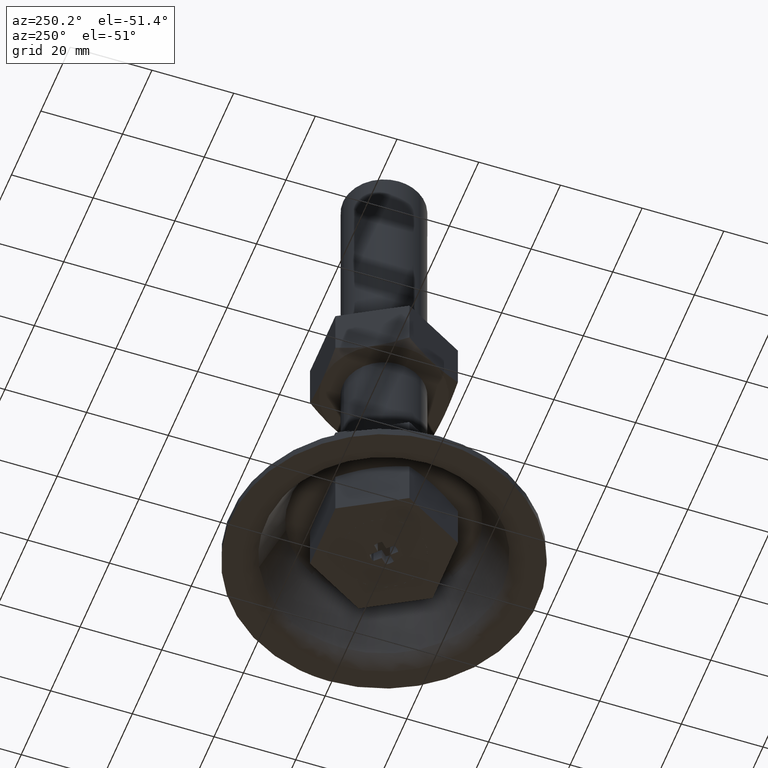
[diagram: clean part render]
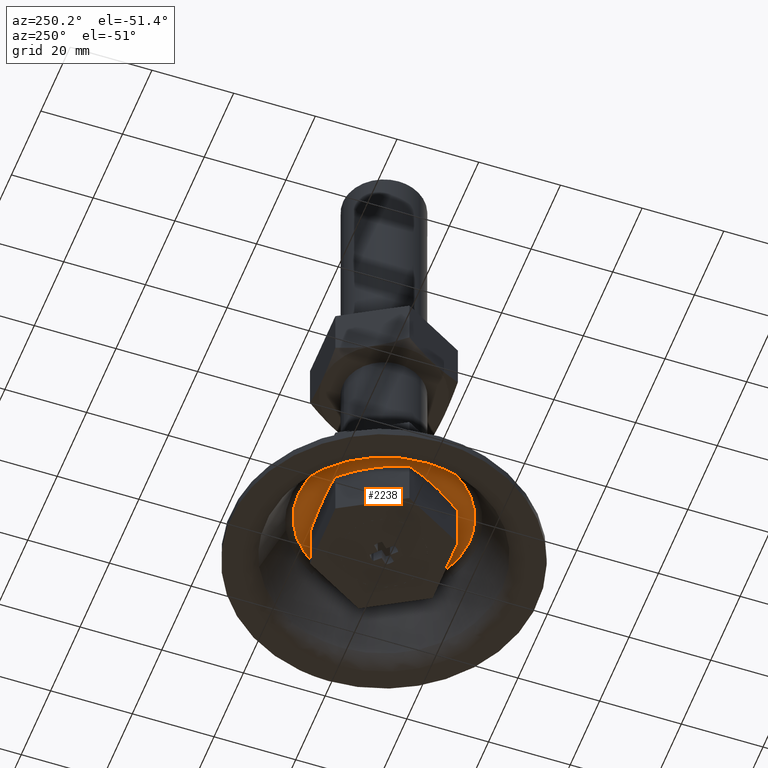
[diagram: same view with one face highlighted and labeled with its STEP entity id]
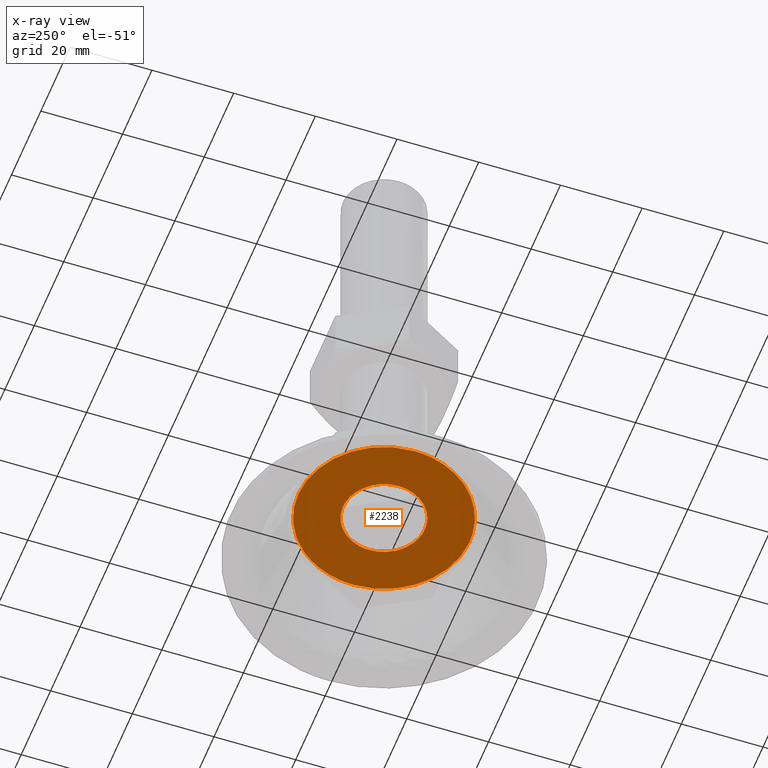
[diagram: x-ray of the same camera — body ghosted, the highlighted face saturated]
A machine part, auxiliary view. The second image highlights one B-rep face of the part: STEP entity #2238.
The next image is the same camera in x-ray: the body ghosted, the highlighted face saturated — about 2% of this face is hidden behind the body in this view.
In plain terms, the highlighted face is a freeform B-spline surface patch.
Its self-contained STEP definition (entity closure, byte-faithful):
#768=CARTESIAN_POINT('',(-1.180342346617756,9.930095263630699,16.0));
#769=VERTEX_POINT('',#768);
#775=CARTESIAN_POINT('',(10.0,0.0,16.0));
#776=VERTEX_POINT('',#775);
#777=CARTESIAN_POINT('',(-1.180342346617757,9.930095263630699,16.000000000000007));
#778=CARTESIAN_POINT('',(-0.592241196569803,10.0,16.000000000000004));
#779=CARTESIAN_POINT('',(0.0,10.0,16.0));
#780=CARTESIAN_POINT('',(10.000000000000002,10.000000000000002,15.999999999999998));
#781=CARTESIAN_POINT('',(10.0,0.0,16.0));
#789=(BOUNDED_CURVE()B_SPLINE_CURVE(2,(#777,#778,#779,#780,#781),.UNSPECIFIED.,.F.,.U.)B_SPLINE_CURVE_WITH_KNOTS((3,2,3),(0.229562473513936,0.250000000000000,0.500000000000000),.UNSPECIFIED.)CURVE()GEOMETRIC_REPRESENTATION_ITEM()RATIONAL_B_SPLINE_CURVE((0.956026754184538,0.976055948331647,1.0,0.707106781186548,1.0))REPRESENTATION_ITEM(''));
#790=EDGE_CURVE('',#769,#776,#789,.T.);
#792=CARTESIAN_POINT('',(0.610485395425955,-9.981347984213935,16.0));
#793=VERTEX_POINT('',#792);
#794=CARTESIAN_POINT('',(10.0,0.0,16.0));
#795=CARTESIAN_POINT('',(10.0,-9.407060668910859,16.000000000000004));
#796=CARTESIAN_POINT('',(0.610485395425955,-9.981347984213935,15.999999999999998));
#804=(BOUNDED_CURVE()B_SPLINE_CURVE(2,(#794,#795,#796),.UNSPECIFIED.,.F.,.U.)B_SPLINE_CURVE_WITH_KNOTS((3,3),(0.500000000000000,0.739332962239294),.UNSPECIFIED.)CURVE()GEOMETRIC_REPRESENTATION_ITEM()RATIONAL_B_SPLINE_CURVE((1.0,0.719603993286299,0.976072041667470))REPRESENTATION_ITEM(''));
#805=EDGE_CURVE('',#776,#793,#804,.T.);
#879=CARTESIAN_POINT('',(-10.0,0.0,16.0));
#880=VERTEX_POINT('',#879);
#881=CARTESIAN_POINT('',(0.610485395425955,-9.981347984213935,16.0));
#882=CARTESIAN_POINT('',(0.305527633063491,-10.000000000000002,16.000000000000004));
#883=CARTESIAN_POINT('',(0.0,-10.0,16.0));
#884=CARTESIAN_POINT('',(-10.000000000000002,-10.000000000000002,15.999999999999998));
#885=CARTESIAN_POINT('',(-10.0,0.0,16.0));
#893=(BOUNDED_CURVE()B_SPLINE_CURVE(2,(#881,#882,#883,#884,#885),.UNSPECIFIED.,.F.,.U.)B_SPLINE_CURVE_WITH_KNOTS((3,2,3),(0.739332962239293,0.750000000000000,1.0),.UNSPECIFIED.)CURVE()GEOMETRIC_REPRESENTATION_ITEM()RATIONAL_B_SPLINE_CURVE((0.976072041667468,0.987502787900247,1.0,0.707106781186548,1.0))REPRESENTATION_ITEM(''));
#894=EDGE_CURVE('',#793,#880,#893,.T.);
#896=CARTESIAN_POINT('',(-10.0,0.0,16.0));
#897=CARTESIAN_POINT('',(-10.0,8.881745259423289,16.000000000000004));
#898=CARTESIAN_POINT('',(-1.180342346617757,9.930095263630699,15.999999999999998));
#906=(BOUNDED_CURVE()B_SPLINE_CURVE(2,(#896,#897,#898),.UNSPECIFIED.,.F.,.U.)B_SPLINE_CURVE_WITH_KNOTS((3,3),(0.0,0.229562473513936),.UNSPECIFIED.)CURVE()GEOMETRIC_REPRESENTATION_ITEM()RATIONAL_B_SPLINE_CURVE((1.0,0.731050832854901,0.956026754184538))REPRESENTATION_ITEM(''));
#907=EDGE_CURVE('',#880,#769,#906,.T.);
#1620=CARTESIAN_POINT('',(9.388559230290817,-18.715872610611950,16.000000000000099));
#1621=VERTEX_POINT('',#1620);
#1622=CARTESIAN_POINT('',(-20.938694608125552,0.0,16.0));
#1623=VERTEX_POINT('',#1622);
#1624=CARTESIAN_POINT('',(9.388559230290817,-18.715872610611946,16.000000000000096));
#1625=CARTESIAN_POINT('',(4.957415710470114,-20.938694608125548,15.999999999999996));
#1626=CARTESIAN_POINT('',(0.0,-20.938694608125552,16.0));
#1627=CARTESIAN_POINT('',(-20.938694608125555,-20.938694608125555,15.999999999999998));
#1628=CARTESIAN_POINT('',(-20.938694608125552,0.0,16.0));
#1636=(BOUNDED_CURVE()B_SPLINE_CURVE(2,(#1624,#1625,#1626,#1627,#1628),.UNSPECIFIED.,.F.,.U.)B_SPLINE_CURVE_WITH_KNOTS((3,2,3),(0.673769062114933,0.750000000000000,1.0),.UNSPECIFIED.)CURVE()GEOMETRIC_REPRESENTATION_ITEM()RATIONAL_B_SPLINE_CURVE((0.875845342762002,0.910689900918697,1.0,0.707106781186548,1.0))REPRESENTATION_ITEM(''));
#1637=EDGE_CURVE('',#1621,#1623,#1636,.T.);
#1656=CARTESIAN_POINT('',(18.715872611067891,9.388559230536515,16.000000000000099));
#1657=VERTEX_POINT('',#1656);
#1671=CARTESIAN_POINT('',(-20.938694608125552,0.0,16.0));
#1672=CARTESIAN_POINT('',(-20.938694608125555,20.938694608125555,15.999999999999998));
#1673=CARTESIAN_POINT('',(0.0,20.938694608125552,16.0));
#1674=CARTESIAN_POINT('',(12.921906578551091,20.938694608125555,15.999999999999995));
#1675=CARTESIAN_POINT('',(18.715872611067894,9.388559230536515,16.000000000000096));
#1683=(BOUNDED_CURVE()B_SPLINE_CURVE(2,(#1671,#1672,#1673,#1674,#1675),.UNSPECIFIED.,.F.,.U.)B_SPLINE_CURVE_WITH_KNOTS((3,2,3),(0.0,0.250000000000000,0.423769062114708),.UNSPECIFIED.)CURVE()GEOMETRIC_REPRESENTATION_ITEM()RATIONAL_B_SPLINE_CURVE((1.0,0.707106781186548,1.0,0.796416880268113,0.875845342761797))REPRESENTATION_ITEM(''));
#1684=EDGE_CURVE('',#1623,#1657,#1683,.T.);
#1706=CARTESIAN_POINT('',(20.938694608125552,0.0,16.0));
#1707=VERTEX_POINT('',#1706);
#1708=CARTESIAN_POINT('',(20.938694608125552,0.0,16.0));
#1709=CARTESIAN_POINT('',(20.938694608125552,-12.921906578572012,15.999999999999995));
#1710=CARTESIAN_POINT('',(9.388559230290817,-18.715872610611942,16.000000000000103));
#1718=(BOUNDED_CURVE()B_SPLINE_CURVE(2,(#1708,#1709,#1710),.UNSPECIFIED.,.F.,.U.)B_SPLINE_CURVE_WITH_KNOTS((3,3),(0.500000000000000,0.673769062114932),.UNSPECIFIED.)CURVE()GEOMETRIC_REPRESENTATION_ITEM()RATIONAL_B_SPLINE_CURVE((1.0,0.796416880267851,0.875845342762002))REPRESENTATION_ITEM(''));
#1719=EDGE_CURVE('',#1707,#1621,#1718,.T.);
#1721=CARTESIAN_POINT('',(18.715872611067898,9.388559230536515,16.000000000000103));
#1722=CARTESIAN_POINT('',(20.938694608125555,4.957415710486141,16.000000000000007));
#1723=CARTESIAN_POINT('',(20.938694608125552,0.0,16.0));
#1731=(BOUNDED_CURVE()B_SPLINE_CURVE(2,(#1721,#1722,#1723),.UNSPECIFIED.,.F.,.U.)B_SPLINE_CURVE_WITH_KNOTS((3,3),(0.423769062114708,0.500000000000000),.UNSPECIFIED.)CURVE()GEOMETRIC_REPRESENTATION_ITEM()RATIONAL_B_SPLINE_CURVE((0.875845342761797,0.910689900918434,1.0))REPRESENTATION_ITEM(''));
#1732=EDGE_CURVE('',#1657,#1707,#1731,.T.);
#2221=CARTESIAN_POINT('',(23.030469575580369,-23.028712980552189,16.0));
#2222=CARTESIAN_POINT('',(-23.030468077928219,-23.028712980552189,16.0));
#2223=CARTESIAN_POINT('',(23.030469575580369,23.016811288873029,16.0));
#2224=CARTESIAN_POINT('',(-23.030468077928219,23.016811288873029,16.0));
#2225=B_SPLINE_SURFACE_WITH_KNOTS('',1,1,((#2221,#2223),(#2222,#2224)),.UNSPECIFIED.,.F.,.F.,.U.,(2,2),(2,2),(0.0,46.060937653508589),(0.0,46.045524269425222),.UNSPECIFIED.);
#2226=ORIENTED_EDGE('',*,*,#1684,.T.);
#2227=ORIENTED_EDGE('',*,*,#1732,.T.);
#2228=ORIENTED_EDGE('',*,*,#1719,.T.);
#2229=ORIENTED_EDGE('',*,*,#1637,.T.);
#2230=EDGE_LOOP('',(#2226,#2227,#2228,#2229));
#2231=FACE_OUTER_BOUND('',#2230,.T.);
#2232=ORIENTED_EDGE('',*,*,#805,.F.);
#2233=ORIENTED_EDGE('',*,*,#790,.F.);
#2234=ORIENTED_EDGE('',*,*,#907,.F.);
#2235=ORIENTED_EDGE('',*,*,#894,.F.);
#2236=EDGE_LOOP('',(#2232,#2233,#2234,#2235));
#2237=FACE_BOUND('',#2236,.T.);
#2238=ADVANCED_FACE('',(#2231,#2237),#2225,.T.);